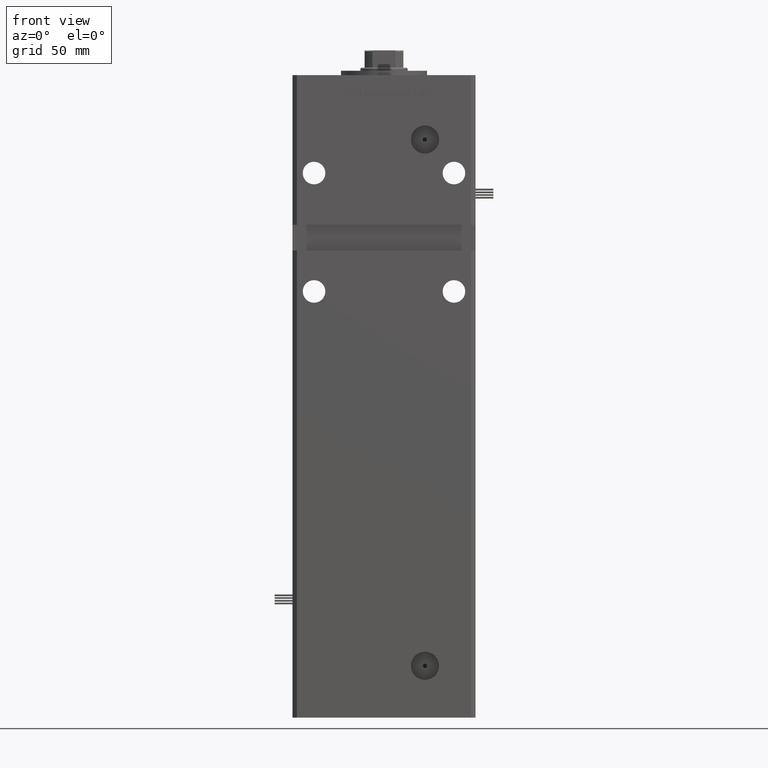
[diagram: clean part render]
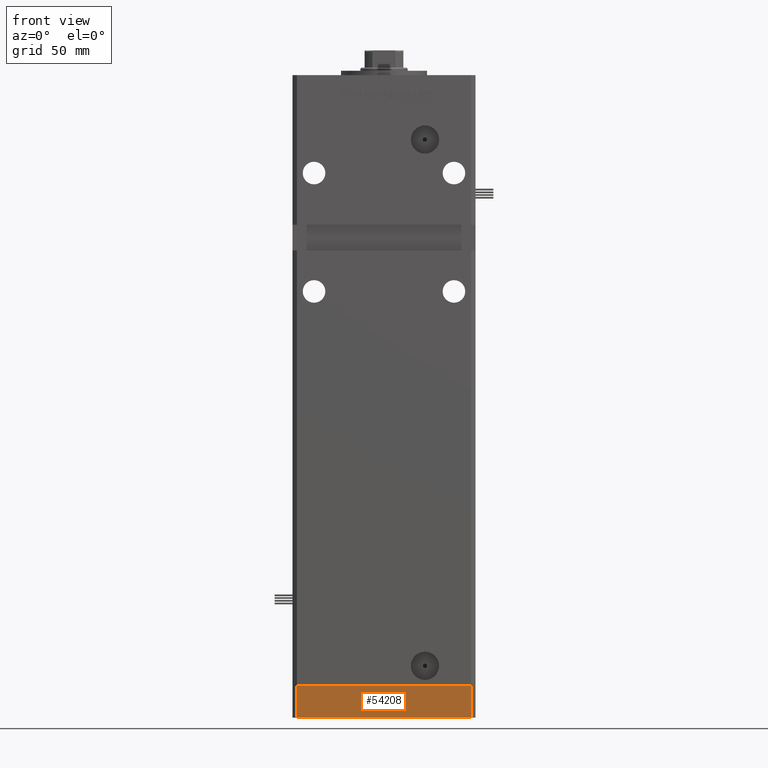
[diagram: same view with one face highlighted and labeled with its STEP entity id]
A machine part, front view. The second image highlights one B-rep face of the part: STEP entity #54208.
In plain terms, the highlighted planar face has unit normal (0, -1, -0).
Its self-contained STEP definition (entity closure, byte-faithful):
#4188 = EDGE_LOOP ( 'NONE', ( #53342, #23974, #46113, #40981 ) ) ;
#4393 = DIRECTION ( 'NONE',  ( 1.000000000000000000, 1.713307136767217096E-16, 0.000000000000000000 ) ) ;
#5047 = AXIS2_PLACEMENT_3D ( 'NONE', #44644, #32123, #18518 ) ;
#5327 = DIRECTION ( 'NONE',  ( 1.000000000000000000, 1.713307136767217096E-16, 0.000000000000000000 ) ) ;
#16605 = CARTESIAN_POINT ( 'NONE',  ( 40.50000000000000000, -37.50000000000000711, 0.000000000000000000 ) ) ;
#18151 = VECTOR ( 'NONE', #5327, 1000.000000000000000 ) ;
#18282 = LINE ( 'NONE', #21431, #24145 ) ;
#18518 = DIRECTION ( 'NONE',  ( 1.000000000000000000, 1.713307136767217096E-16, 0.000000000000000000 ) ) ;
#21431 = CARTESIAN_POINT ( 'NONE',  ( -40.49999999999999289, -37.50000000000002132, -15.00000000000000000 ) ) ;
#23044 = VERTEX_POINT ( 'NONE', #16605 ) ;
#23572 = VECTOR ( 'NONE', #55047, 1000.000000000000000 ) ;
#23974 = ORIENTED_EDGE ( 'NONE', *, *, #34199, .F. ) ;
#24145 = VECTOR ( 'NONE', #38770, 1000.000000000000000 ) ;
#24608 = LINE ( 'NONE', #28025, #23572 ) ;
#27188 = CARTESIAN_POINT ( 'NONE',  ( -40.49999999999999289, -37.50000000000002132, 0.000000000000000000 ) ) ;
#28025 = CARTESIAN_POINT ( 'NONE',  ( 40.50000000000000000, -37.50000000000000711, -15.00000000000000000 ) ) ;
#31180 = LINE ( 'NONE', #27188, #18151 ) ;
#31406 = VECTOR ( 'NONE', #4393, 1000.000000000000000 ) ;
#32123 = DIRECTION ( 'NONE',  ( 1.713307136767217096E-16, -1.000000000000000000, 0.000000000000000000 ) ) ;
#34199 = EDGE_CURVE ( 'NONE', #46785, #40048, #18282, .T. ) ;
#37436 = VERTEX_POINT ( 'NONE', #55131 ) ;
#38770 = DIRECTION ( 'NONE',  ( 0.000000000000000000, 0.000000000000000000, 1.000000000000000000 ) ) ;
#40048 = VERTEX_POINT ( 'NONE', #47727 ) ;
#40981 = ORIENTED_EDGE ( 'NONE', *, *, #43795, .T. ) ;
#43713 = EDGE_CURVE ( 'NONE', #40048, #23044, #31180, .T. ) ;
#43795 = EDGE_CURVE ( 'NONE', #37436, #23044, #24608, .T. ) ;
#43895 = LINE ( 'NONE', #45232, #31406 ) ;
#44644 = CARTESIAN_POINT ( 'NONE',  ( -40.49999999999999289, -37.50000000000002132, -15.00000000000000000 ) ) ;
#45232 = CARTESIAN_POINT ( 'NONE',  ( -40.49999999999999289, -37.50000000000002132, -15.00000000000000000 ) ) ;
#46113 = ORIENTED_EDGE ( 'NONE', *, *, #54937, .T. ) ;
#46785 = VERTEX_POINT ( 'NONE', #50954 ) ;
#47727 = CARTESIAN_POINT ( 'NONE',  ( -40.49999999999999289, -37.50000000000002132, 0.000000000000000000 ) ) ;
#50954 = CARTESIAN_POINT ( 'NONE',  ( -40.49999999999999289, -37.50000000000002132, -15.00000000000000000 ) ) ;
#52633 = PLANE ( 'NONE',  #5047 ) ;
#52905 = FACE_OUTER_BOUND ( 'NONE', #4188, .T. ) ;
#53342 = ORIENTED_EDGE ( 'NONE', *, *, #43713, .F. ) ;
#54208 = ADVANCED_FACE ( 'NONE', ( #52905 ), #52633, .T. ) ;
#54937 = EDGE_CURVE ( 'NONE', #46785, #37436, #43895, .T. ) ;
#55047 = DIRECTION ( 'NONE',  ( 0.000000000000000000, 0.000000000000000000, 1.000000000000000000 ) ) ;
#55131 = CARTESIAN_POINT ( 'NONE',  ( 40.50000000000000000, -37.50000000000000711, -15.00000000000000000 ) ) ;